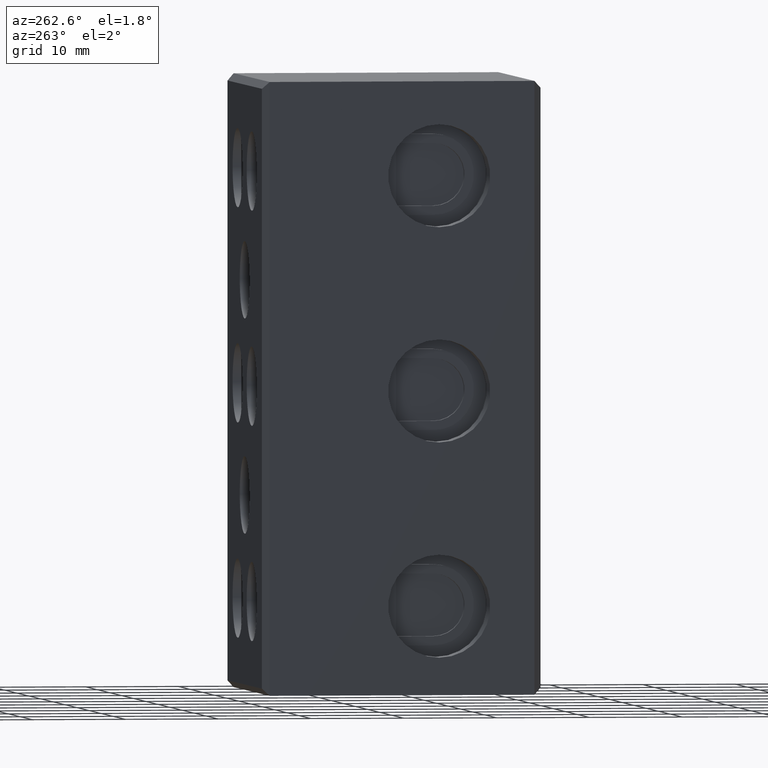
[diagram: clean part render]
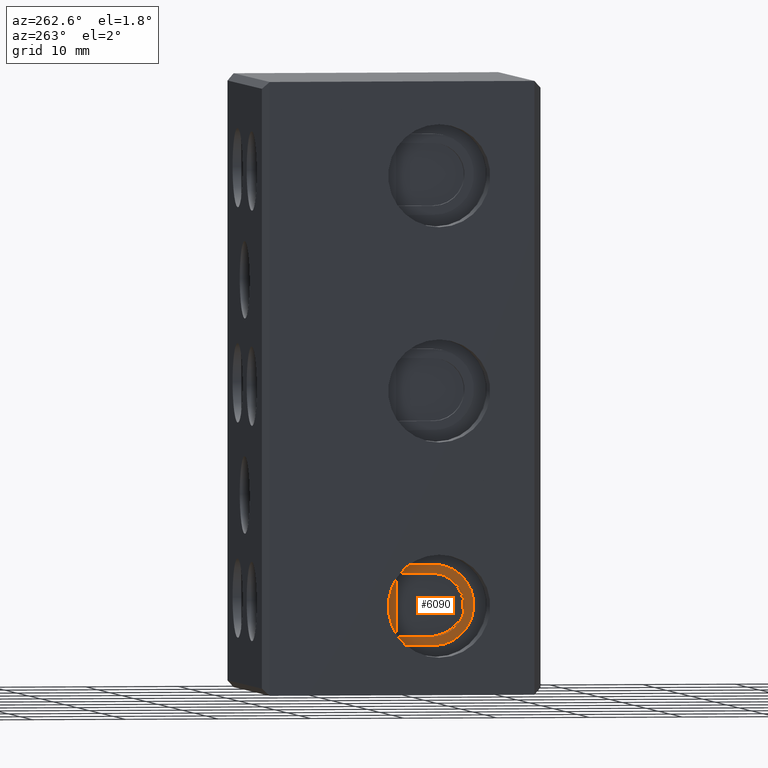
[diagram: same view with one face highlighted and labeled with its STEP entity id]
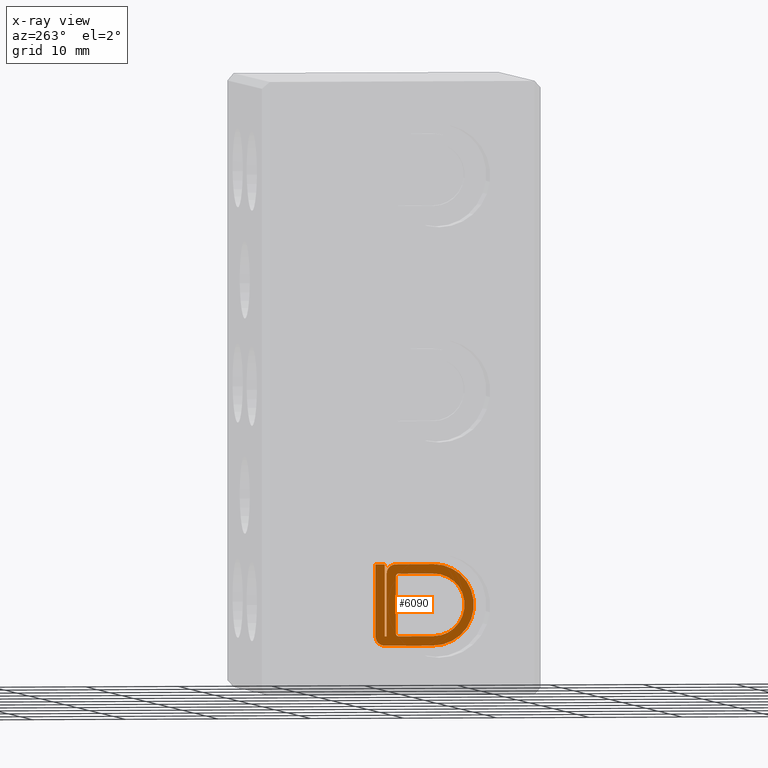
[diagram: x-ray of the same camera — body ghosted, the highlighted face saturated]
A machine part, auxiliary view. The second image highlights one B-rep face of the part: STEP entity #6090.
The next image is the same camera in x-ray: the body ghosted, the highlighted face saturated — about 0% of this face is hidden behind the body in this view.
In plain terms, the highlighted planar face has unit normal (1, 0, -0).
Its self-contained STEP definition (entity closure, byte-faithful):
#36 = DIRECTION ( 'NONE',  ( 1.000000000000000000, 0.0000000000000000000, -1.224646799147353200E-016 ) ) ;
#39 = DIRECTION ( 'NONE',  ( 0.0000000000000000000, 0.0000000000000000000, -1.000000000000000000 ) ) ;
#41 = LINE ( 'NONE', #56, #9725 ) ;
#53 = DIRECTION ( 'NONE',  ( 0.0000000000000000000, -1.000000000000000000, -1.713307136767217800E-015 ) ) ;
#56 = CARTESIAN_POINT ( 'NONE',  ( 4.750000000000163400, 15.04999999999999700, 13.85000000000000700 ) ) ;
#63 = CARTESIAN_POINT ( 'NONE',  ( 4.750000000000163400, 15.05000000000000100, 12.85000000000000500 ) ) ;
#92 = DIRECTION ( 'NONE',  ( 0.0000000000000000000, 1.000000000000000000, 1.850371707708593600E-015 ) ) ;
#730 = CARTESIAN_POINT ( 'NONE',  ( 4.750000000000163400, 17.25000000000000000, 6.150000000000008300 ) ) ;
#733 = DIRECTION ( 'NONE',  ( 0.0000000000000000000, 0.0000000000000000000, 1.000000000000000000 ) ) ;
#2076 = CARTESIAN_POINT ( 'NONE',  ( 4.750000000000163400, 11.00000000000000000, 9.500000000000000000 ) ) ;
#2117 = DIRECTION ( 'NONE',  ( -1.224646799147353200E-016, 0.0000000000000000000, -1.000000000000000000 ) ) ;
#2127 = FACE_BOUND ( 'NONE', #8833, .T. ) ;
#2139 = FACE_OUTER_BOUND ( 'NONE', #8768, .T. ) ;
#2144 = DIRECTION ( 'NONE',  ( 1.000000000000000000, 0.0000000000000000000, -1.224646799147353200E-016 ) ) ;
#2145 = CARTESIAN_POINT ( 'NONE',  ( 4.750000000000163400, 11.00000000000000000, 9.500000000000000000 ) ) ;
#2153 = PLANE ( 'NONE',  #2843 ) ;
#2207 = DIRECTION ( 'NONE',  ( 1.000000000000000000, 0.0000000000000000000, -1.224646799147353200E-016 ) ) ;
#2262 = DIRECTION ( 'NONE',  ( -1.993935029858399100E-016, 0.0000000000000000000, -1.000000000000000000 ) ) ;
#2843 = AXIS2_PLACEMENT_3D ( 'NONE', #2145, #2144, #2117 ) ;
#3961 = ORIENTED_EDGE ( 'NONE', *, *, #7705, .F. ) ;
#3965 = ORIENTED_EDGE ( 'NONE', *, *, #7786, .F. ) ;
#3969 = ORIENTED_EDGE ( 'NONE', *, *, #7701, .F. ) ;
#3972 = ORIENTED_EDGE ( 'NONE', *, *, #7759, .T. ) ;
#3973 = ORIENTED_EDGE ( 'NONE', *, *, #7757, .F. ) ;
#3983 = ORIENTED_EDGE ( 'NONE', *, *, #7761, .T. ) ;
#3986 = ORIENTED_EDGE ( 'NONE', *, *, #7751, .F. ) ;
#3991 = ORIENTED_EDGE ( 'NONE', *, *, #7770, .T. ) ;
#4001 = ORIENTED_EDGE ( 'NONE', *, *, #7782, .T. ) ;
#4007 = ORIENTED_EDGE ( 'NONE', *, *, #7771, .T. ) ;
#4008 = ORIENTED_EDGE ( 'NONE', *, *, #7790, .T. ) ;
#4010 = ORIENTED_EDGE ( 'NONE', *, *, #7767, .F. ) ;
#4319 = DIRECTION ( 'NONE',  ( 0.0000000000000000000, 0.0000000000000000000, -1.000000000000000000 ) ) ;
#4320 = CARTESIAN_POINT ( 'NONE',  ( 4.750000000000163400, 16.25000000000000000, 6.150000000000008300 ) ) ;
#4322 = CARTESIAN_POINT ( 'NONE',  ( 4.750000000000163400, 11.00000000000000000, 9.500000000000000000 ) ) ;
#4324 = DIRECTION ( 'NONE',  ( 1.000000000000000000, 0.0000000000000000000, -1.224646799147353200E-016 ) ) ;
#4325 = LINE ( 'NONE', #4320, #9854 ) ;
#4326 = DIRECTION ( 'NONE',  ( 0.0000000000000000000, 0.0000000000000000000, -1.000000000000000000 ) ) ;
#4327 = DIRECTION ( 'NONE',  ( 1.000000000000000000, 0.0000000000000000000, -1.224646799147353200E-016 ) ) ;
#4329 = DIRECTION ( 'NONE',  ( 0.0000000000000000000, 0.0000000000000000000, -1.000000000000000000 ) ) ;
#4331 = CARTESIAN_POINT ( 'NONE',  ( 4.750000000000163400, 14.75000000000000200, 12.85000000000000500 ) ) ;
#4332 = DIRECTION ( 'NONE',  ( 0.0000000000000000000, -1.000000000000000000, 0.0000000000000000000 ) ) ;
#4333 = LINE ( 'NONE', #4331, #9798 ) ;
#4339 = DIRECTION ( 'NONE',  ( 0.0000000000000000000, -1.000000000000000000, -1.850371707708593600E-015 ) ) ;
#4340 = CARTESIAN_POINT ( 'NONE',  ( 4.750000000000163400, 14.75000000000000200, 12.55000000000000400 ) ) ;
#4363 = LINE ( 'NONE', #4384, #9824 ) ;
#4366 = DIRECTION ( 'NONE',  ( 0.0000000000000000000, 1.000000000000000000, 1.321694076934709800E-015 ) ) ;
#4369 = CARTESIAN_POINT ( 'NONE',  ( 4.750000000000163400, 16.25000000000000000, 6.150000000000008300 ) ) ;
#4380 = CARTESIAN_POINT ( 'NONE',  ( 4.750000000000163400, 16.05000000000000100, 6.150000000000008300 ) ) ;
#4384 = CARTESIAN_POINT ( 'NONE',  ( 4.750000000000163400, 15.05000000000000100, 6.450000000000010800 ) ) ;
#4388 = LINE ( 'NONE', #4380, #9781 ) ;
#4390 = LINE ( 'NONE', #4400, #9820 ) ;
#4392 = DIRECTION ( 'NONE',  ( 0.0000000000000000000, 0.0000000000000000000, 1.000000000000000000 ) ) ;
#4395 = DIRECTION ( 'NONE',  ( 0.0000000000000000000, 0.0000000000000000000, 1.000000000000000000 ) ) ;
#4397 = DIRECTION ( 'NONE',  ( 1.000000000000000000, 0.0000000000000000000, -1.224646799147353200E-016 ) ) ;
#4400 = CARTESIAN_POINT ( 'NONE',  ( 4.750000000000163400, 11.00000000000000000, 5.150000000000001200 ) ) ;
#4402 = DIRECTION ( 'NONE',  ( 0.0000000000000000000, 0.0000000000000000000, -1.000000000000000000 ) ) ;
#4416 = DIRECTION ( 'NONE',  ( 0.0000000000000000000, -1.000000000000000000, 0.0000000000000000000 ) ) ;
#4422 = DIRECTION ( 'NONE',  ( 0.0000000000000000000, 0.0000000000000000000, -1.000000000000000000 ) ) ;
#4426 = LINE ( 'NONE', #4450, #9939 ) ;
#4440 = DIRECTION ( 'NONE',  ( 1.000000000000000000, 0.0000000000000000000, -1.224646799147353200E-016 ) ) ;
#4442 = CARTESIAN_POINT ( 'NONE',  ( 4.750000000000163400, 14.75000000000000200, 6.450000000000010800 ) ) ;
#4450 = CARTESIAN_POINT ( 'NONE',  ( 4.750000000000163400, 17.25000000000000000, 13.85000000000000700 ) ) ;
#4505 = LINE ( 'NONE', #7273, #9801 ) ;
#4519 = LINE ( 'NONE', #730, #9829 ) ;
#4653 = VERTEX_POINT ( 'NONE', #9081 ) ;
#4700 = VERTEX_POINT ( 'NONE', #9196 ) ;
#4716 = VERTEX_POINT ( 'NONE', #9265 ) ;
#4719 = VERTEX_POINT ( 'NONE', #9224 ) ;
#4723 = VERTEX_POINT ( 'NONE', #9302 ) ;
#4725 = VERTEX_POINT ( 'NONE', #9350 ) ;
#4726 = VERTEX_POINT ( 'NONE', #9309 ) ;
#4729 = VERTEX_POINT ( 'NONE', #9298 ) ;
#4736 = VERTEX_POINT ( 'NONE', #9284 ) ;
#4744 = VERTEX_POINT ( 'NONE', #9334 ) ;
#4745 = VERTEX_POINT ( 'NONE', #9368 ) ;
#4746 = VERTEX_POINT ( 'NONE', #9290 ) ;
#4747 = VERTEX_POINT ( 'NONE', #9364 ) ;
#4748 = VERTEX_POINT ( 'NONE', #9337 ) ;
#4751 = VERTEX_POINT ( 'NONE', #9341 ) ;
#4753 = VERTEX_POINT ( 'NONE', #9292 ) ;
#6090 = ADVANCED_FACE ( 'NONE', ( #2127, #2139 ), #2153, .F. ) ;
#7273 = CARTESIAN_POINT ( 'NONE',  ( 4.750000000000163400, 11.00000000000000000, 6.150000000000002100 ) ) ;
#7701 = EDGE_CURVE ( 'NONE', #4726, #4723, #41, .T. ) ;
#7705 = EDGE_CURVE ( 'NONE', #4719, #4726, #9623, .T. ) ;
#7751 = EDGE_CURVE ( 'NONE', #4723, #4653, #9858, .T. ) ;
#7753 = EDGE_CURVE ( 'NONE', #4753, #4745, #4519, .T. ) ;
#7757 = EDGE_CURVE ( 'NONE', #4747, #4700, #10133, .T. ) ;
#7759 = EDGE_CURVE ( 'NONE', #4744, #4716, #4505, .T. ) ;
#7761 = EDGE_CURVE ( 'NONE', #4748, #4736, #9755, .T. ) ;
#7767 = EDGE_CURVE ( 'NONE', #4700, #4725, #4325, .T. ) ;
#7770 = EDGE_CURVE ( 'NONE', #4729, #4744, #9764, .T. ) ;
#7771 = EDGE_CURVE ( 'NONE', #4736, #4729, #4333, .T. ) ;
#7780 = EDGE_CURVE ( 'NONE', #4653, #4751, #4390, .T. ) ;
#7782 = EDGE_CURVE ( 'NONE', #4746, #4748, #4363, .T. ) ;
#7786 = EDGE_CURVE ( 'NONE', #4725, #4719, #4388, .T. ) ;
#7788 = EDGE_CURVE ( 'NONE', #4751, #4753, #9922, .T. ) ;
#7790 = EDGE_CURVE ( 'NONE', #4716, #4746, #9924, .T. ) ;
#7792 = EDGE_CURVE ( 'NONE', #4745, #4747, #4426, .T. ) ;
#8768 = EDGE_LOOP ( 'NONE', ( #3986, #3969, #3961, #3965, #4010, #3973, #8904, #8891, #8900, #8880 ) ) ;
#8833 = EDGE_LOOP ( 'NONE', ( #4001, #3983, #4007, #3991, #3972, #4008 ) ) ;
#8880 = ORIENTED_EDGE ( 'NONE', *, *, #7780, .F. ) ;
#8891 = ORIENTED_EDGE ( 'NONE', *, *, #7753, .F. ) ;
#8900 = ORIENTED_EDGE ( 'NONE', *, *, #7788, .F. ) ;
#8904 = ORIENTED_EDGE ( 'NONE', *, *, #7792, .F. ) ;
#9081 = CARTESIAN_POINT ( 'NONE',  ( 4.750000000000163400, 11.00000000000000000, 5.150000000000001200 ) ) ;
#9196 = CARTESIAN_POINT ( 'NONE',  ( 4.750000000000163400, 16.25000000000000000, 6.150000000000008300 ) ) ;
#9224 = CARTESIAN_POINT ( 'NONE',  ( 4.750000000000163400, 16.05000000000000100, 12.85000000000000500 ) ) ;
#9265 = CARTESIAN_POINT ( 'NONE',  ( 4.750000000000163400, 14.75000000000000200, 6.150000000000009200 ) ) ;
#9284 = CARTESIAN_POINT ( 'NONE',  ( 4.750000000000163400, 14.75000000000000200, 12.85000000000000500 ) ) ;
#9290 = CARTESIAN_POINT ( 'NONE',  ( 4.750000000000163400, 15.05000000000000100, 6.450000000000010800 ) ) ;
#9292 = CARTESIAN_POINT ( 'NONE',  ( 4.750000000000163400, 17.25000000000000000, 6.150000000000008300 ) ) ;
#9298 = CARTESIAN_POINT ( 'NONE',  ( 4.750000000000163400, 11.00000000000000000, 12.84999999999999800 ) ) ;
#9302 = CARTESIAN_POINT ( 'NONE',  ( 4.750000000000163400, 11.00000000000000000, 13.85000000000000000 ) ) ;
#9309 = CARTESIAN_POINT ( 'NONE',  ( 4.750000000000163400, 15.04999999999999700, 13.85000000000000700 ) ) ;
#9334 = CARTESIAN_POINT ( 'NONE',  ( 4.750000000000163400, 11.00000000000000000, 6.150000000000002100 ) ) ;
#9337 = CARTESIAN_POINT ( 'NONE',  ( 4.750000000000163400, 15.05000000000000100, 12.55000000000000400 ) ) ;
#9341 = CARTESIAN_POINT ( 'NONE',  ( 4.750000000000163400, 16.25000000000000000, 5.150000000000007500 ) ) ;
#9350 = CARTESIAN_POINT ( 'NONE',  ( 4.750000000000163400, 16.05000000000000100, 6.150000000000008300 ) ) ;
#9364 = CARTESIAN_POINT ( 'NONE',  ( 4.750000000000163400, 16.25000000000000000, 13.85000000000000700 ) ) ;
#9368 = CARTESIAN_POINT ( 'NONE',  ( 4.750000000000163400, 17.25000000000000000, 13.85000000000000700 ) ) ;
#9623 = CIRCLE ( 'NONE', #9703, 1.000000000000000900 ) ;
#9703 = AXIS2_PLACEMENT_3D ( 'NONE', #63, #36, #39 ) ;
#9725 = VECTOR ( 'NONE', #53, 1000.000000000000000 ) ;
#9755 = CIRCLE ( 'NONE', #9757, 0.2999999999999999300 ) ;
#9757 = AXIS2_PLACEMENT_3D ( 'NONE', #4340, #4324, #4329 ) ;
#9764 = CIRCLE ( 'NONE', #9790, 3.349999999999998800 ) ;
#9781 = VECTOR ( 'NONE', #4395, 1000.000000000000000 ) ;
#9790 = AXIS2_PLACEMENT_3D ( 'NONE', #4322, #4327, #4326 ) ;
#9798 = VECTOR ( 'NONE', #4339, 1000.000000000000000 ) ;
#9801 = VECTOR ( 'NONE', #92, 1000.000000000000000 ) ;
#9809 = VECTOR ( 'NONE', #4319, 1000.000000000000000 ) ;
#9820 = VECTOR ( 'NONE', #4366, 1000.000000000000000 ) ;
#9824 = VECTOR ( 'NONE', #4392, 1000.000000000000000 ) ;
#9829 = VECTOR ( 'NONE', #733, 1000.000000000000000 ) ;
#9839 = AXIS2_PLACEMENT_3D ( 'NONE', #2076, #2207, #2262 ) ;
#9854 = VECTOR ( 'NONE', #4332, 1000.000000000000000 ) ;
#9858 = CIRCLE ( 'NONE', #9839, 4.349999999999999600 ) ;
#9889 = AXIS2_PLACEMENT_3D ( 'NONE', #4369, #4397, #4402 ) ;
#9897 = AXIS2_PLACEMENT_3D ( 'NONE', #4442, #4440, #4422 ) ;
#9922 = CIRCLE ( 'NONE', #9889, 1.000000000000000900 ) ;
#9924 = CIRCLE ( 'NONE', #9897, 0.3000000000000007700 ) ;
#9939 = VECTOR ( 'NONE', #4416, 1000.000000000000000 ) ;
#10132 = CARTESIAN_POINT ( 'NONE',  ( 4.750000000000163400, 16.25000000000000000, 13.85000000000000700 ) ) ;
#10133 = LINE ( 'NONE', #10132, #9809 ) ;